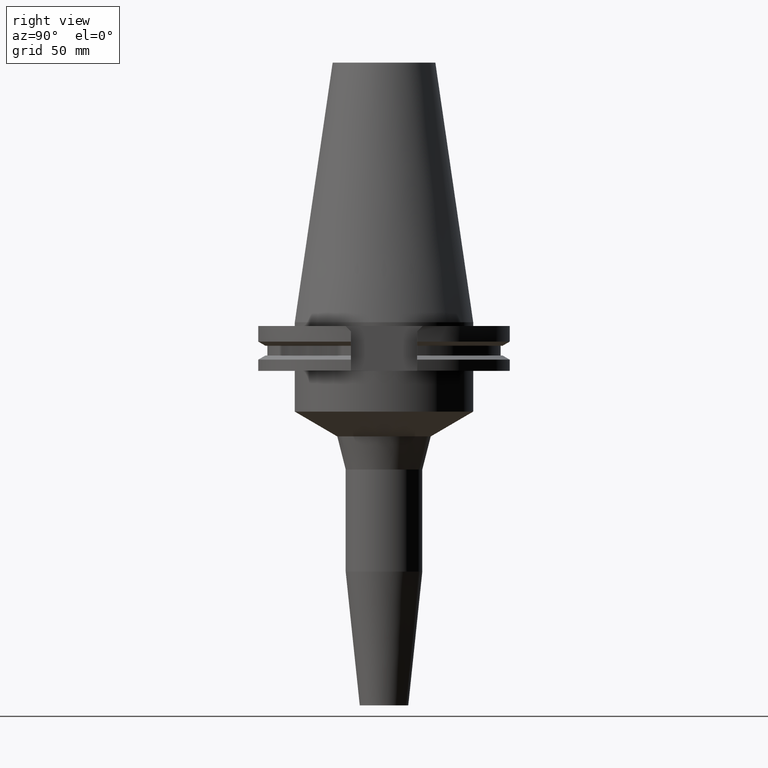
[diagram: clean part render]
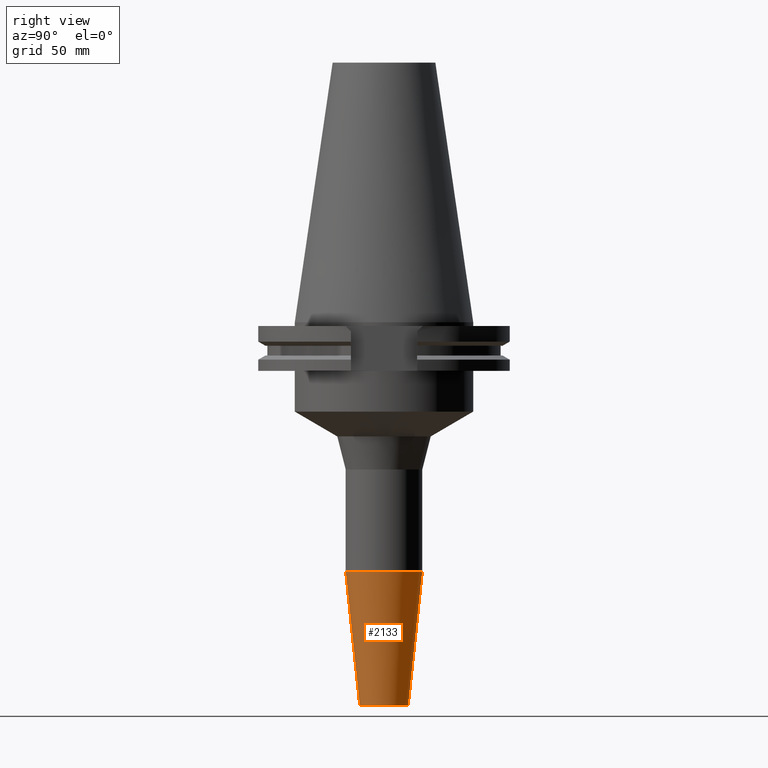
[diagram: same view with one face highlighted and labeled with its STEP entity id]
A machine part, right view. The second image highlights one B-rep face of the part: STEP entity #2133.
In plain terms, the highlighted conical surface has half-angle 6 deg.
Its self-contained STEP definition (entity closure, byte-faithful):
#960=DIRECTION('',(0.E0,1.045284632677E-1,-9.945218953683E-1));
#961=VECTOR('',#960,5.261724728428E1);
#962=CARTESIAN_POINT('',(0.E0,-1.5E1,-9.767099550178E1));
#963=LINE('',#962,#961);
#967=DIRECTION('',(0.E0,-1.045284632677E-1,-9.945218953683E-1));
#968=VECTOR('',#967,5.261724728428E1);
#969=CARTESIAN_POINT('',(0.E0,1.5E1,-9.767099550178E1));
#970=LINE('',#969,#968);
#974=CARTESIAN_POINT('',(0.E0,-1.516547459414E-14,-9.767099550178E1));
#975=DIRECTION('',(0.E0,0.E0,1.E0));
#976=DIRECTION('',(0.E0,-1.E0,0.E0));
#977=AXIS2_PLACEMENT_3D('',#974,#975,#976);
#982=CARTESIAN_POINT('',(0.E0,-1.516547459414E-14,-1.5E2));
#983=DIRECTION('',(0.E0,0.E0,1.E0));
#984=DIRECTION('',(0.E0,-1.E0,0.E0));
#985=AXIS2_PLACEMENT_3D('',#982,#983,#984);
#1236=CARTESIAN_POINT('',(0.E0,-9.500000000001E0,-1.5E2));
#1237=CARTESIAN_POINT('',(0.E0,9.500000000001E0,-1.5E2));
#1238=VERTEX_POINT('',#1236);
#1239=VERTEX_POINT('',#1237);
#1240=CARTESIAN_POINT('',(0.E0,1.5E1,-9.767099550178E1));
#1241=VERTEX_POINT('',#1240);
#1242=CARTESIAN_POINT('',(0.E0,-1.5E1,-9.767099550178E1));
#1243=VERTEX_POINT('',#1242);
#2121=CARTESIAN_POINT('',(0.E0,-1.516547459414E-14,-1.238354977509E2));
#2122=DIRECTION('',(0.E0,0.E0,1.E0));
#2123=DIRECTION('',(0.E0,1.E0,0.E0));
#2124=AXIS2_PLACEMENT_3D('',#2121,#2122,#2123);
#2125=CONICAL_SURFACE('',#2124,1.225E1,6.E0);
#2126=ORIENTED_EDGE('',*,*,#2111,.T.);
#2128=ORIENTED_EDGE('',*,*,#2127,.F.);
#2129=ORIENTED_EDGE('',*,*,#2114,.F.);
#2130=ORIENTED_EDGE('',*,*,#2085,.T.);
#2131=EDGE_LOOP('',(#2126,#2128,#2129,#2130));
#2132=FACE_OUTER_BOUND('',#2131,.F.);
#978=CIRCLE('',#977,1.5E1);
#986=CIRCLE('',#985,9.500000000001E0);
#2085=EDGE_CURVE('',#1243,#1241,#978,.T.);
#2111=EDGE_CURVE('',#1241,#1239,#970,.T.);
#2114=EDGE_CURVE('',#1243,#1238,#963,.T.);
#2127=EDGE_CURVE('',#1238,#1239,#986,.T.);
#2133=ADVANCED_FACE('',(#2132),#2125,.T.);